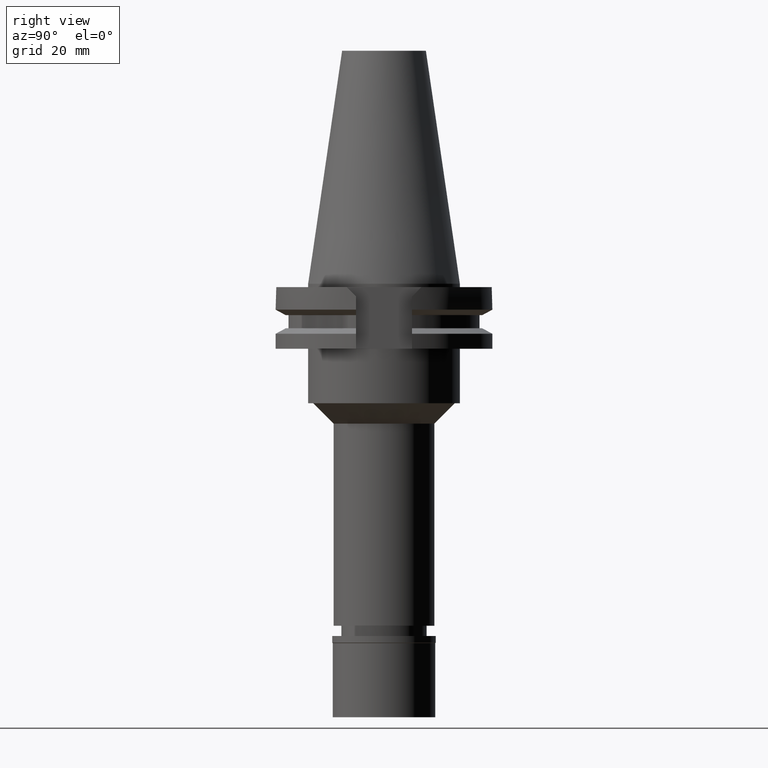
[diagram: clean part render]
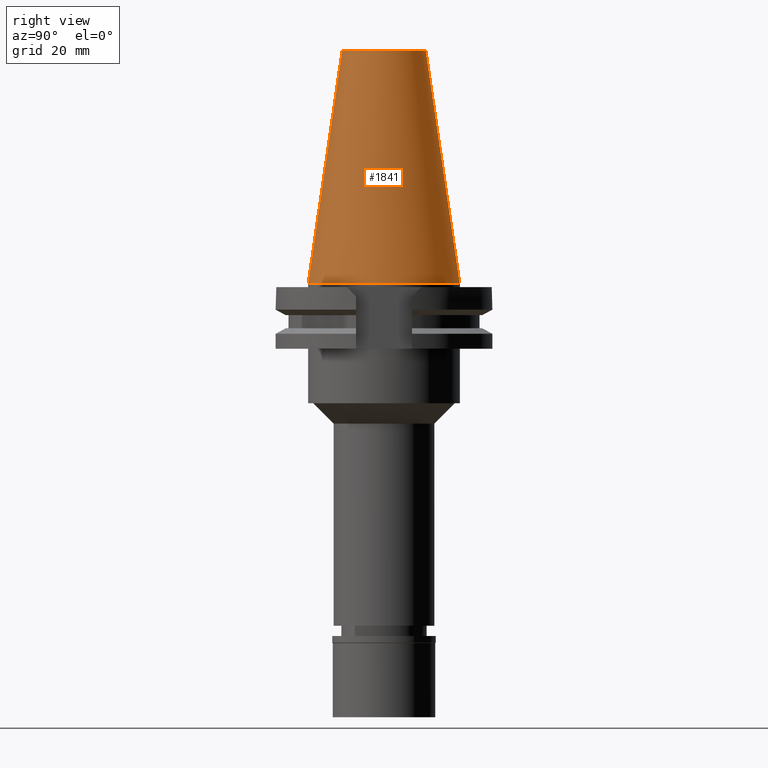
[diagram: same view with one face highlighted and labeled with its STEP entity id]
A machine part, right view. The second image highlights one B-rep face of the part: STEP entity #1841.
In plain terms, the highlighted conical surface has half-angle 8.297 deg.
Its self-contained STEP definition (entity closure, byte-faithful):
#41 = DIRECTION ( 'NONE',  ( 0.0000000000000000000, 0.1443069799456937474, -0.9895329683941577192 ) ) ;
#140 = EDGE_CURVE ( 'NONE', #1309, #2930, #531, .T. ) ;
#230 = CARTESIAN_POINT ( 'NONE',  ( 0.0000000000000000000, 22.22500000000000142, -2.060573933703999733E-13 ) ) ;
#244 = CARTESIAN_POINT ( 'NONE',  ( 0.0000000000000000000, 12.27186888070000137, 68.25000000000000000 ) ) ;
#317 = AXIS2_PLACEMENT_3D ( 'NONE', #1619, #2959, #1423 ) ;
#467 = AXIS2_PLACEMENT_3D ( 'NONE', #1554, #766, #2874 ) ;
#531 = LINE ( 'NONE', #1547, #1186 ) ;
#766 = DIRECTION ( 'NONE',  ( 0.0000000000000000000, 0.0000000000000000000, -1.000000000000000000 ) ) ;
#788 = EDGE_CURVE ( 'NONE', #2542, #2434, #2643, .T. ) ;
#870 = CARTESIAN_POINT ( 'NONE',  ( 0.0000000000000000000, -12.27186888070000137, 68.25000000000000000 ) ) ;
#889 = EDGE_CURVE ( 'NONE', #1309, #2542, #2033, .T. ) ;
#939 = CARTESIAN_POINT ( 'NONE',  ( 0.0000000000000000000, 0.0000000000000000000, 68.25000000000000000 ) ) ;
#1108 = CARTESIAN_POINT ( 'NONE',  ( 0.0000000000000000000, -12.27186888070000137, 68.25000000000000000 ) ) ;
#1186 = VECTOR ( 'NONE', #41, 1000.000000000000114 ) ;
#1309 = VERTEX_POINT ( 'NONE', #244 ) ;
#1423 = DIRECTION ( 'NONE',  ( 0.0000000000000000000, 1.000000000000000000, 0.0000000000000000000 ) ) ;
#1429 = ORIENTED_EDGE ( 'NONE', *, *, #140, .F. ) ;
#1547 = CARTESIAN_POINT ( 'NONE',  ( 0.0000000000000000000, 12.27186888070000137, 68.25000000000000000 ) ) ;
#1554 = CARTESIAN_POINT ( 'NONE',  ( 0.0000000000000000000, 0.0000000000000000000, 34.12500000000000000 ) ) ;
#1619 = CARTESIAN_POINT ( 'NONE',  ( 0.0000000000000000000, 0.0000000000000000000, -3.126388037344000570E-13 ) ) ;
#1742 = CIRCLE ( 'NONE', #317, 22.22500000000000142 ) ;
#1841 = ADVANCED_FACE ( 'NONE', ( #2069 ), #3042, .T. ) ;
#2033 = CIRCLE ( 'NONE', #2859, 12.27186888070000137 ) ;
#2043 = ORIENTED_EDGE ( 'NONE', *, *, #889, .T. ) ;
#2069 = FACE_OUTER_BOUND ( 'NONE', #2441, .T. ) ;
#2112 = EDGE_CURVE ( 'NONE', #2930, #2434, #1742, .T. ) ;
#2127 = DIRECTION ( 'NONE',  ( 0.0000000000000000000, -0.1443069799456937474, -0.9895329683941577192 ) ) ;
#2282 = DIRECTION ( 'NONE',  ( 0.0000000000000000000, 1.000000000000000000, 0.0000000000000000000 ) ) ;
#2424 = VECTOR ( 'NONE', #2127, 1000.000000000000114 ) ;
#2434 = VERTEX_POINT ( 'NONE', #2820 ) ;
#2441 = EDGE_LOOP ( 'NONE', ( #2043, #3019, #2653, #1429 ) ) ;
#2542 = VERTEX_POINT ( 'NONE', #870 ) ;
#2643 = LINE ( 'NONE', #1108, #2424 ) ;
#2653 = ORIENTED_EDGE ( 'NONE', *, *, #2112, .F. ) ;
#2820 = CARTESIAN_POINT ( 'NONE',  ( 0.0000000000000000000, -22.22500000000000142, -2.060573933703999733E-13 ) ) ;
#2859 = AXIS2_PLACEMENT_3D ( 'NONE', #939, #3276, #2282 ) ;
#2874 = DIRECTION ( 'NONE',  ( 0.0000000000000000000, -1.000000000000000000, 0.0000000000000000000 ) ) ;
#2930 = VERTEX_POINT ( 'NONE', #230 ) ;
#2959 = DIRECTION ( 'NONE',  ( 0.0000000000000000000, 0.0000000000000000000, -1.000000000000000000 ) ) ;
#3019 = ORIENTED_EDGE ( 'NONE', *, *, #788, .T. ) ;
#3042 = CONICAL_SURFACE ( 'NONE', #467, 17.24843444035000317, 0.1448125860318199565 ) ;
#3276 = DIRECTION ( 'NONE',  ( 0.0000000000000000000, 0.0000000000000000000, -1.000000000000000000 ) ) ;